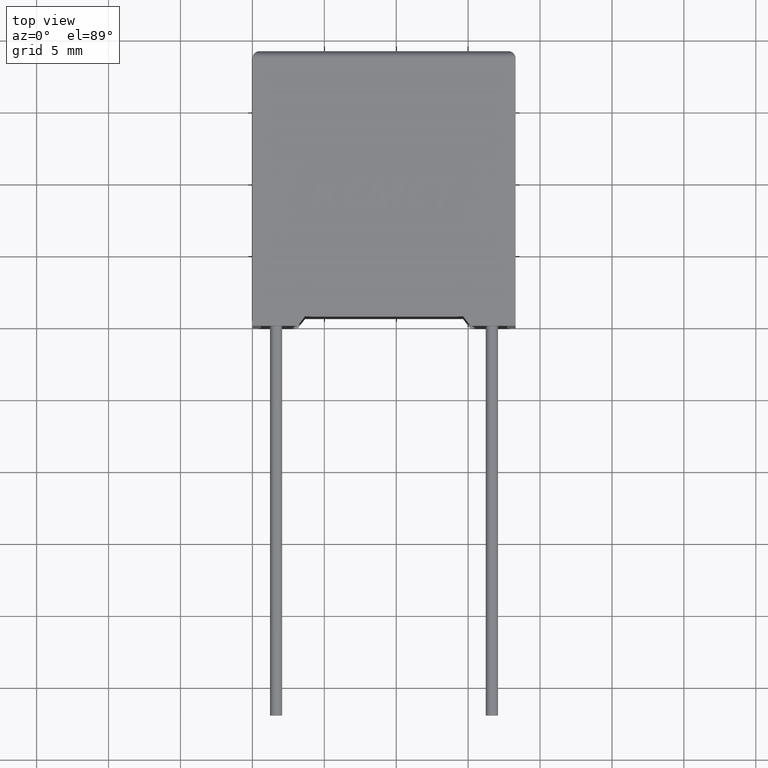
[diagram: clean part render]
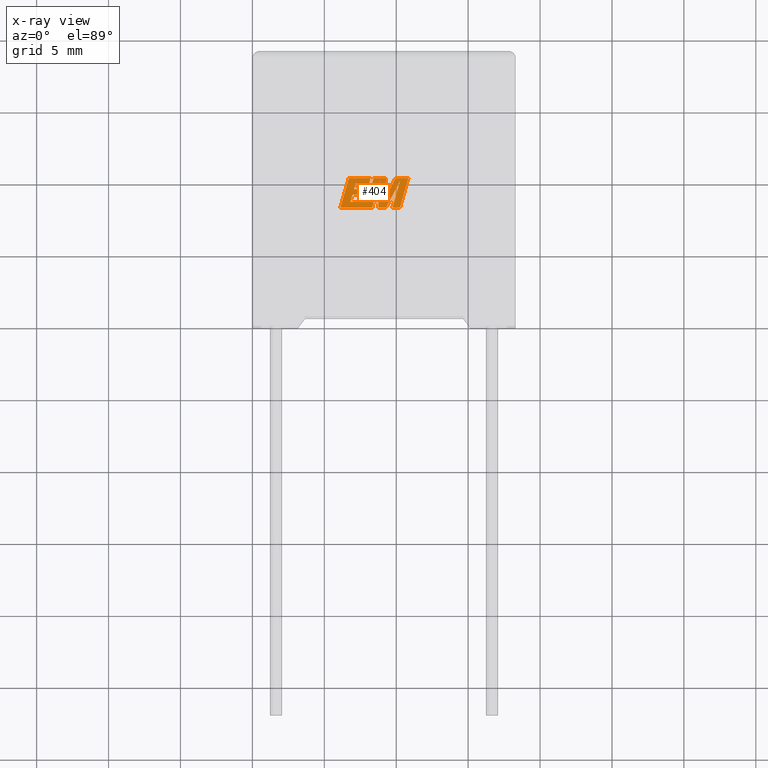
[diagram: x-ray — body ghosted, one internal face saturated and labeled with its STEP entity id]
A machine part, top view, then the same camera in x-ray: the body is ghosted and one INTERNAL B-rep face — a face not visible from any outside direction — is saturated and labeled: STEP entity #404.
In plain terms, the highlighted planar face has unit normal (0, 0, -1).
Its self-contained STEP definition (entity closure, byte-faithful):
#21 = EDGE_CURVE ( 'NONE', #2863, #489, #1121, .T. ) ;
#35 = VECTOR ( 'NONE', #1113, 999.9999999999998863 ) ;
#56 = VECTOR ( 'NONE', #1433, 1000.000000000000114 ) ;
#96 = ORIENTED_EDGE ( 'NONE', *, *, #1946, .F. ) ;
#126 = CARTESIAN_POINT ( 'NONE',  ( 8.327195703898468082, 8.218729999999936808, 11.19999999999999929 ) ) ;
#132 = DIRECTION ( 'NONE',  ( -1.000000000000000000, 0.000000000000000000, 0.000000000000000000 ) ) ;
#158 = LINE ( 'NONE', #648, #35 ) ;
#184 = LINE ( 'NONE', #630, #1797 ) ;
#214 = LINE ( 'NONE', #2887, #2044 ) ;
#215 = VERTEX_POINT ( 'NONE', #2272 ) ;
#219 = ORIENTED_EDGE ( 'NONE', *, *, #1732, .F. ) ;
#242 = CARTESIAN_POINT ( 'NONE',  ( 7.839011005306755209, 9.118140615357459566, 11.19999999999999929 ) ) ;
#255 = DIRECTION ( 'NONE',  ( 1.000000000000000000, 0.000000000000000000, 0.000000000000000000 ) ) ;
#256 = VECTOR ( 'NONE', #1537, 1000.000000000000227 ) ;
#279 = VECTOR ( 'NONE', #1324, 1000.000000000000114 ) ;
#283 = CARTESIAN_POINT ( 'NONE',  ( 7.950472854412912405, 8.608696892129774625, 11.19999999999999929 ) ) ;
#308 = EDGE_CURVE ( 'NONE', #2495, #442, #1393, .T. ) ;
#345 = DIRECTION ( 'NONE',  ( 0.2793947940878294123, 0.9601763114327593884, 0.000000000000000000 ) ) ;
#386 = DIRECTION ( 'NONE',  ( -0.2762517575166416606, -0.9610853065513833560, 0.000000000000000000 ) ) ;
#391 = DIRECTION ( 'NONE',  ( -1.000000000000000000, 0.000000000000000000, 0.000000000000000000 ) ) ;
#396 = DIRECTION ( 'NONE',  ( 1.000000000000000000, 0.000000000000000000, 0.000000000000000000 ) ) ;
#398 = LINE ( 'NONE', #2074, #908 ) ;
#404 = ADVANCED_FACE ( 'NONE', ( #2365 ), #1242, .T. ) ;
#421 = DIRECTION ( 'NONE',  ( -0.05596501978069369498, -0.9984327301130239141, 0.000000000000000000 ) ) ;
#442 = VERTEX_POINT ( 'NONE', #1925 ) ;
#458 = VECTOR ( 'NONE', #132, 1000.000000000000000 ) ;
#486 = LINE ( 'NONE', #1945, #56 ) ;
#489 = VERTEX_POINT ( 'NONE', #1536 ) ;
#497 = CARTESIAN_POINT ( 'NONE',  ( 9.736741848859447046, 8.218729999999936808, 11.19999999999999929 ) ) ;
#501 = ORIENTED_EDGE ( 'NONE', *, *, #2984, .F. ) ;
#504 = ORIENTED_EDGE ( 'NONE', *, *, #2057, .F. ) ;
#518 = VERTEX_POINT ( 'NONE', #605 ) ;
#530 = EDGE_CURVE ( 'NONE', #215, #1174, #2468, .T. ) ;
#545 = LINE ( 'NONE', #1736, #458 ) ;
#605 = CARTESIAN_POINT ( 'NONE',  ( 7.947244424658281403, 9.497069767896146431, 11.19999999999999929 ) ) ;
#617 = VECTOR ( 'NONE', #893, 1000.000000000000000 ) ;
#621 = DIRECTION ( 'NONE',  ( 0.2759782365590697228, 0.9611638845408965182, 0.000000000000000000 ) ) ;
#630 = CARTESIAN_POINT ( 'NONE',  ( 8.427557490167984611, 10.26848373847408169, 11.19999999999999929 ) ) ;
#632 = VERTEX_POINT ( 'NONE', #1126 ) ;
#647 = CARTESIAN_POINT ( 'NONE',  ( 8.851161128560534053, 10.04357187598430734, 11.19999999999999929 ) ) ;
#648 = CARTESIAN_POINT ( 'NONE',  ( 6.708817521994717481, 10.26848373847408169, 11.19999999999999929 ) ) ;
#671 = EDGE_CURVE ( 'NONE', #1517, #2495, #2987, .T. ) ;
#672 = CARTESIAN_POINT ( 'NONE',  ( 9.300475089700448450, 10.26848373847408169, 11.19999999999999929 ) ) ;
#674 = ORIENTED_EDGE ( 'NONE', *, *, #21, .F. ) ;
#686 = CARTESIAN_POINT ( 'NONE',  ( 10.84693527213674713, 10.26848373847408169, 11.19999999999999929 ) ) ;
#688 = EDGE_CURVE ( 'NONE', #1040, #2426, #158, .T. ) ;
#719 = DIRECTION ( 'NONE',  ( 1.000000000000000000, 0.000000000000000000, 0.000000000000000000 ) ) ;
#734 = CARTESIAN_POINT ( 'NONE',  ( 6.959357382888239130, 9.118140615357459566, 11.19999999999999929 ) ) ;
#743 = DIRECTION ( 'NONE',  ( 0.4668459304955080436, 0.8843386665637680277, 0.000000000000000000 ) ) ;
#774 = DIRECTION ( 'NONE',  ( -0.2760118818968579912, -0.9611542233438683525, 0.000000000000000000 ) ) ;
#795 = ORIENTED_EDGE ( 'NONE', *, *, #1980, .F. ) ;
#800 = CARTESIAN_POINT ( 'NONE',  ( 10.26329998931311138, 10.05235968671848035, 11.19999999999999929 ) ) ;
#848 = VECTOR ( 'NONE', #421, 1000.000000000000227 ) ;
#893 = DIRECTION ( 'NONE',  ( 1.000000000000000000, 0.000000000000000000, 0.000000000000000000 ) ) ;
#896 = EDGE_CURVE ( 'NONE', #2426, #215, #1362, .T. ) ;
#908 = VECTOR ( 'NONE', #920, 1000.000000000000000 ) ;
#920 = DIRECTION ( 'NONE',  ( -1.000000000000000000, 0.000000000000000000, 0.000000000000000000 ) ) ;
#976 = DIRECTION ( 'NONE',  ( -1.000000000000000000, 0.000000000000000000, 0.000000000000000000 ) ) ;
#993 = CARTESIAN_POINT ( 'NONE',  ( -0.2224830842431331779, 1.584343497361822894, 11.19999999999999929 ) ) ;
#996 = VERTEX_POINT ( 'NONE', #800 ) ;
#1006 = VECTOR ( 'NONE', #1929, 1000.000000000000000 ) ;
#1018 = ORIENTED_EDGE ( 'NONE', *, *, #1637, .F. ) ;
#1040 = VERTEX_POINT ( 'NONE', #1755 ) ;
#1106 = VECTOR ( 'NONE', #3056, 1000.000000000000000 ) ;
#1113 = DIRECTION ( 'NONE',  ( -0.2765379750249963853, -0.9610029908221278117, 0.000000000000000000 ) ) ;
#1115 = ORIENTED_EDGE ( 'NONE', *, *, #896, .F. ) ;
#1121 = LINE ( 'NONE', #2554, #279 ) ;
#1126 = CARTESIAN_POINT ( 'NONE',  ( 8.427557490167984611, 10.26848373847408169, 11.19999999999999929 ) ) ;
#1135 = VECTOR ( 'NONE', #621, 1000.000000000000227 ) ;
#1162 = VERTEX_POINT ( 'NONE', #2971 ) ;
#1164 = CARTESIAN_POINT ( 'NONE',  ( 9.947927223384221307, 10.26848373847408169, 11.19999999999999929 ) ) ;
#1174 = VERTEX_POINT ( 'NONE', #1358 ) ;
#1187 = VERTEX_POINT ( 'NONE', #1850 ) ;
#1223 = EDGE_CURVE ( 'NONE', #1174, #1162, #2769, .T. ) ;
#1238 = CARTESIAN_POINT ( 'NONE',  ( 7.178404472403893344, 9.878323639161655123, 11.19999999999999929 ) ) ;
#1242 = PLANE ( 'NONE',  #2068 ) ;
#1300 = VECTOR ( 'NONE', #743, 1000.000000000000000 ) ;
#1303 = VECTOR ( 'NONE', #255, 1000.000000000000000 ) ;
#1324 = DIRECTION ( 'NONE',  ( 0.2740217765954066076, 0.9617234872620595842, 0.000000000000000000 ) ) ;
#1358 = CARTESIAN_POINT ( 'NONE',  ( 8.851161128560534053, 10.04357187598430734, 11.19999999999999929 ) ) ;
#1362 = LINE ( 'NONE', #1379, #2175 ) ;
#1379 = CARTESIAN_POINT ( 'NONE',  ( 7.962345746009985348, 8.218729999999936808, 11.19999999999999929 ) ) ;
#1380 = DIRECTION ( 'NONE',  ( -0.4443210308329518243, -0.8958676361826801715, 0.000000000000000000 ) ) ;
#1392 = ORIENTED_EDGE ( 'NONE', *, *, #1889, .F. ) ;
#1393 = LINE ( 'NONE', #1164, #1865 ) ;
#1403 = VECTOR ( 'NONE', #2845, 1000.000000000000000 ) ;
#1408 = ORIENTED_EDGE ( 'NONE', *, *, #2292, .F. ) ;
#1411 = LINE ( 'NONE', #2289, #3017 ) ;
#1433 = DIRECTION ( 'NONE',  ( 0.2763139702539113007, 0.9610674221107073922, 0.000000000000000000 ) ) ;
#1465 = LINE ( 'NONE', #2400, #1006 ) ;
#1487 = DIRECTION ( 'NONE',  ( 0.000000000000000000, 0.000000000000000000, -1.000000000000000000 ) ) ;
#1494 = CARTESIAN_POINT ( 'NONE',  ( 8.112293221804671717, 9.878323639161655123, 11.19999999999999929 ) ) ;
#1517 = VERTEX_POINT ( 'NONE', #686 ) ;
#1536 = CARTESIAN_POINT ( 'NONE',  ( 6.959357382888239130, 9.118140615357459566, 11.19999999999999929 ) ) ;
#1537 = DIRECTION ( 'NONE',  ( 0.2732148821746286371, 0.9619530280415482526, 0.000000000000000000 ) ) ;
#1556 = LINE ( 'NONE', #2492, #617 ) ;
#1560 = VERTEX_POINT ( 'NONE', #1646 ) ;
#1577 = CARTESIAN_POINT ( 'NONE',  ( 10.84693527213674713, 10.26848373847408169, 11.19999999999999929 ) ) ;
#1595 = VERTEX_POINT ( 'NONE', #1494 ) ;
#1604 = VERTEX_POINT ( 'NONE', #2370 ) ;
#1612 = VERTEX_POINT ( 'NONE', #242 ) ;
#1637 = EDGE_CURVE ( 'NONE', #2381, #996, #1898, .T. ) ;
#1646 = CARTESIAN_POINT ( 'NONE',  ( 10.25761595853780150, 8.218729999999936808, 11.19999999999999929 ) ) ;
#1652 = EDGE_LOOP ( 'NONE', ( #2818, #219, #795, #1784, #1018, #2888, #2235, #2822, #1115, #2985, #96, #504, #1739, #501, #1392, #2187, #1408, #674, #1824, #2842, #1911, #2934, #2729 ) ) ;
#1671 = LINE ( 'NONE', #497, #1303 ) ;
#1676 = CARTESIAN_POINT ( 'NONE',  ( 9.295319520239521793, 8.218729999999936808, 11.19999999999999929 ) ) ;
#1691 = EDGE_CURVE ( 'NONE', #1612, #518, #1465, .T. ) ;
#1732 = EDGE_CURVE ( 'NONE', #1560, #1517, #486, .T. ) ;
#1736 = CARTESIAN_POINT ( 'NONE',  ( 9.300475089700448450, 10.26848373847408169, 11.19999999999999929 ) ) ;
#1738 = EDGE_CURVE ( 'NONE', #2514, #632, #545, .T. ) ;
#1739 = ORIENTED_EDGE ( 'NONE', *, *, #2311, .F. ) ;
#1753 = CARTESIAN_POINT ( 'NONE',  ( 7.067466152442149152, 9.497069767896146431, 11.19999999999999929 ) ) ;
#1755 = CARTESIAN_POINT ( 'NONE',  ( 6.708817521994717481, 10.26848373847408169, 11.19999999999999929 ) ) ;
#1784 = ORIENTED_EDGE ( 'NONE', *, *, #2579, .F. ) ;
#1786 = CARTESIAN_POINT ( 'NONE',  ( 7.067466152442149152, 9.497069767896146431, 11.19999999999999929 ) ) ;
#1797 = VECTOR ( 'NONE', #386, 1000.000000000000227 ) ;
#1803 = LINE ( 'NONE', #1753, #1894 ) ;
#1814 = CARTESIAN_POINT ( 'NONE',  ( 9.947927223384221307, 10.26848373847408169, 11.19999999999999929 ) ) ;
#1824 = ORIENTED_EDGE ( 'NONE', *, *, #2820, .F. ) ;
#1850 = CARTESIAN_POINT ( 'NONE',  ( 8.223106891968908982, 10.26848373847408169, 11.19999999999999929 ) ) ;
#1865 = VECTOR ( 'NONE', #1380, 1000.000000000000227 ) ;
#1884 = LINE ( 'NONE', #2834, #1989 ) ;
#1889 = EDGE_CURVE ( 'NONE', #518, #3014, #398, .T. ) ;
#1894 = VECTOR ( 'NONE', #345, 1000.000000000000227 ) ;
#1898 = LINE ( 'NONE', #1676, #1300 ) ;
#1911 = ORIENTED_EDGE ( 'NONE', *, *, #1738, .F. ) ;
#1925 = CARTESIAN_POINT ( 'NONE',  ( 9.221647422191399102, 8.804113331603875992, 11.19999999999999929 ) ) ;
#1929 = DIRECTION ( 'NONE',  ( 0.2746459304916892830, 0.9615454294334481178, 0.000000000000000000 ) ) ;
#1945 = CARTESIAN_POINT ( 'NONE',  ( 10.25761595853780150, 8.218729999999936808, 11.19999999999999929 ) ) ;
#1946 = EDGE_CURVE ( 'NONE', #1187, #1040, #1411, .T. ) ;
#1980 = EDGE_CURVE ( 'NONE', #2576, #1560, #1671, .T. ) ;
#1988 = CARTESIAN_POINT ( 'NONE',  ( 8.112293221804671717, 9.878323639161655123, 11.19999999999999929 ) ) ;
#1989 = VECTOR ( 'NONE', #719, 1000.000000000000000 ) ;
#2044 = VECTOR ( 'NONE', #774, 1000.000000000000227 ) ;
#2057 = EDGE_CURVE ( 'NONE', #1595, #1187, #2202, .T. ) ;
#2068 = AXIS2_PLACEMENT_3D ( 'NONE', #993, #1487, #2868 ) ;
#2074 = CARTESIAN_POINT ( 'NONE',  ( 7.947244424658281403, 9.497069767896146431, 11.19999999999999929 ) ) ;
#2133 = CARTESIAN_POINT ( 'NONE',  ( 6.814202693454945781, 8.608696892129774625, 11.19999999999999929 ) ) ;
#2175 = VECTOR ( 'NONE', #396, 1000.000000000000000 ) ;
#2176 = CARTESIAN_POINT ( 'NONE',  ( 9.221647422191399102, 8.804113331603875992, 11.19999999999999929 ) ) ;
#2187 = ORIENTED_EDGE ( 'NONE', *, *, #1691, .F. ) ;
#2192 = EDGE_CURVE ( 'NONE', #442, #2514, #2551, .T. ) ;
#2202 = LINE ( 'NONE', #1988, #256 ) ;
#2235 = ORIENTED_EDGE ( 'NONE', *, *, #1223, .F. ) ;
#2272 = CARTESIAN_POINT ( 'NONE',  ( 8.327195703898468082, 8.218729999999936808, 11.19999999999999929 ) ) ;
#2289 = CARTESIAN_POINT ( 'NONE',  ( 8.223106891968908982, 10.26848373847408169, 11.19999999999999929 ) ) ;
#2292 = EDGE_CURVE ( 'NONE', #489, #1612, #2401, .T. ) ;
#2305 = VERTEX_POINT ( 'NONE', #1238 ) ;
#2311 = EDGE_CURVE ( 'NONE', #2305, #1595, #1884, .T. ) ;
#2340 = CARTESIAN_POINT ( 'NONE',  ( 9.736741848859447046, 8.218729999999936808, 11.19999999999999929 ) ) ;
#2365 = FACE_OUTER_BOUND ( 'NONE', #1652, .T. ) ;
#2370 = CARTESIAN_POINT ( 'NONE',  ( 7.950472854412912405, 8.608696892129774625, 11.19999999999999929 ) ) ;
#2381 = VERTEX_POINT ( 'NONE', #2716 ) ;
#2400 = CARTESIAN_POINT ( 'NONE',  ( 7.839011005306755209, 9.118140615357459566, 11.19999999999999929 ) ) ;
#2401 = LINE ( 'NONE', #734, #1403 ) ;
#2413 = EDGE_CURVE ( 'NONE', #1162, #2381, #1556, .T. ) ;
#2426 = VERTEX_POINT ( 'NONE', #2736 ) ;
#2443 = VECTOR ( 'NONE', #976, 1000.000000000000000 ) ;
#2458 = EDGE_CURVE ( 'NONE', #632, #1604, #184, .T. ) ;
#2468 = LINE ( 'NONE', #126, #1135 ) ;
#2492 = CARTESIAN_POINT ( 'NONE',  ( 8.748873504561524683, 8.218729999999936808, 11.19999999999999929 ) ) ;
#2495 = VERTEX_POINT ( 'NONE', #1814 ) ;
#2507 = VECTOR ( 'NONE', #391, 1000.000000000000000 ) ;
#2514 = VERTEX_POINT ( 'NONE', #672 ) ;
#2551 = LINE ( 'NONE', #2176, #1106 ) ;
#2554 = CARTESIAN_POINT ( 'NONE',  ( 6.814202693454945781, 8.608696892129774625, 11.19999999999999929 ) ) ;
#2576 = VERTEX_POINT ( 'NONE', #2340 ) ;
#2579 = EDGE_CURVE ( 'NONE', #996, #2576, #214, .T. ) ;
#2646 = LINE ( 'NONE', #283, #2443 ) ;
#2716 = CARTESIAN_POINT ( 'NONE',  ( 9.295319520239521793, 8.218729999999936808, 11.19999999999999929 ) ) ;
#2729 = ORIENTED_EDGE ( 'NONE', *, *, #308, .F. ) ;
#2736 = CARTESIAN_POINT ( 'NONE',  ( 6.118980910089238279, 8.218729999999935032, 11.19999999999999929 ) ) ;
#2769 = LINE ( 'NONE', #647, #848 ) ;
#2818 = ORIENTED_EDGE ( 'NONE', *, *, #671, .F. ) ;
#2820 = EDGE_CURVE ( 'NONE', #1604, #2863, #2646, .T. ) ;
#2822 = ORIENTED_EDGE ( 'NONE', *, *, #530, .F. ) ;
#2834 = CARTESIAN_POINT ( 'NONE',  ( 7.178404472403893344, 9.878323639161655123, 11.19999999999999929 ) ) ;
#2842 = ORIENTED_EDGE ( 'NONE', *, *, #2458, .F. ) ;
#2845 = DIRECTION ( 'NONE',  ( 1.000000000000000000, 0.000000000000000000, 0.000000000000000000 ) ) ;
#2863 = VERTEX_POINT ( 'NONE', #2133 ) ;
#2868 = DIRECTION ( 'NONE',  ( -1.000000000000000000, 0.000000000000000000, 0.000000000000000000 ) ) ;
#2887 = CARTESIAN_POINT ( 'NONE',  ( 10.26329998931311138, 10.05235968671848035, 11.19999999999999929 ) ) ;
#2888 = ORIENTED_EDGE ( 'NONE', *, *, #2413, .F. ) ;
#2934 = ORIENTED_EDGE ( 'NONE', *, *, #2192, .F. ) ;
#2971 = CARTESIAN_POINT ( 'NONE',  ( 8.748873504561524683, 8.218729999999936808, 11.19999999999999929 ) ) ;
#2984 = EDGE_CURVE ( 'NONE', #3014, #2305, #1803, .T. ) ;
#2985 = ORIENTED_EDGE ( 'NONE', *, *, #688, .F. ) ;
#2987 = LINE ( 'NONE', #1577, #2507 ) ;
#3014 = VERTEX_POINT ( 'NONE', #1786 ) ;
#3017 = VECTOR ( 'NONE', #3021, 1000.000000000000000 ) ;
#3021 = DIRECTION ( 'NONE',  ( -1.000000000000000000, 0.000000000000000000, 0.000000000000000000 ) ) ;
#3056 = DIRECTION ( 'NONE',  ( 0.05375259206908576670, 0.9985542843760946141, 0.000000000000000000 ) ) ;